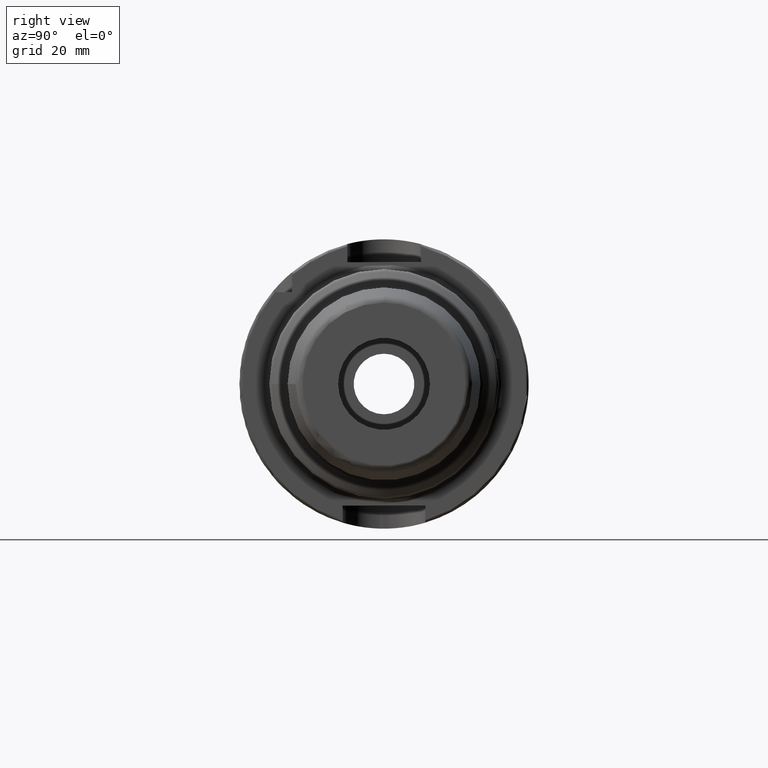
[diagram: clean part render]
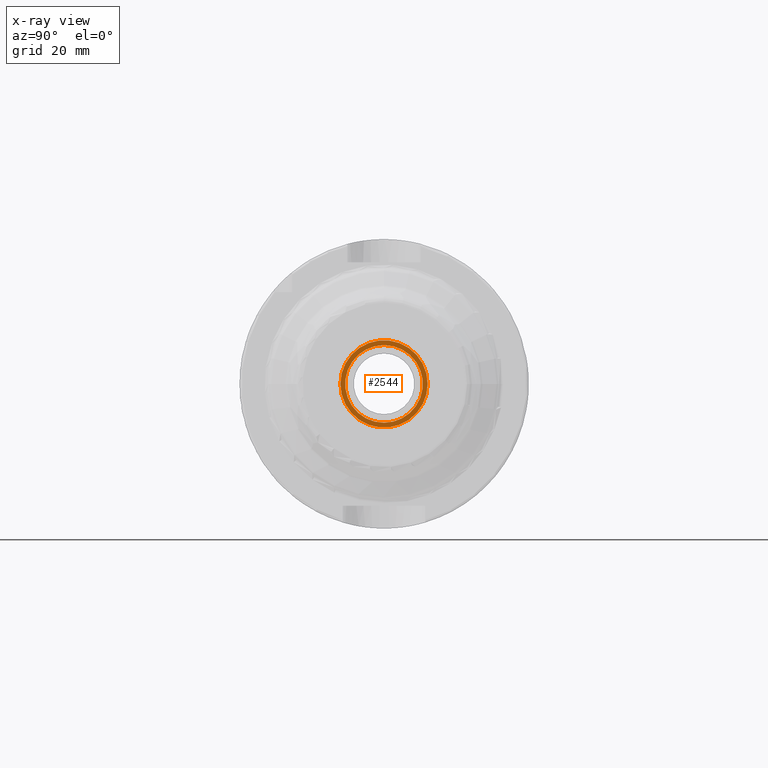
[diagram: x-ray — body ghosted, one internal face saturated and labeled with its STEP entity id]
A machine part, right view, then the same camera in x-ray: the body is ghosted and one INTERNAL B-rep face — a face not visible from any outside direction — is saturated and labeled: STEP entity #2544.
In plain terms, the highlighted planar face has unit normal (-1, 0, 0).
Its self-contained STEP definition (entity closure, byte-faithful):
#151=FACE_BOUND('',#344,.T.);
#162=PLANE('',#2710);
#207=FACE_OUTER_BOUND('',#343,.T.);
#343=EDGE_LOOP('',(#1678,#1679));
#344=EDGE_LOOP('',(#1680,#1681));
#721=CIRCLE('',#2702,8.45873400000001);
#722=CIRCLE('',#2703,8.45873400000001);
#725=CIRCLE('',#2708,9.5);
#726=CIRCLE('',#2709,9.5);
#947=VERTEX_POINT('',#3928);
#948=VERTEX_POINT('',#3930);
#951=VERTEX_POINT('',#3939);
#952=VERTEX_POINT('',#3941);
#1243=EDGE_CURVE('',#948,#947,#721,.T.);
#1244=EDGE_CURVE('',#947,#948,#722,.T.);
#1248=EDGE_CURVE('',#951,#952,#725,.T.);
#1249=EDGE_CURVE('',#952,#951,#726,.T.);
#1678=ORIENTED_EDGE('',*,*,#1249,.F.);
#1679=ORIENTED_EDGE('',*,*,#1248,.F.);
#1680=ORIENTED_EDGE('',*,*,#1243,.T.);
#1681=ORIENTED_EDGE('',*,*,#1244,.T.);
#2544=ADVANCED_FACE('',(#207,#151),#162,.F.);
#2702=AXIS2_PLACEMENT_3D('',#3931,#3080,#3081);
#2703=AXIS2_PLACEMENT_3D('',#3932,#3082,#3083);
#2708=AXIS2_PLACEMENT_3D('',#3942,#3093,#3094);
#2709=AXIS2_PLACEMENT_3D('',#3943,#3095,#3096);
#2710=AXIS2_PLACEMENT_3D('',#3944,#3097,#3098);
#3080=DIRECTION('center_axis',(-1.,0.,0.));
#3081=DIRECTION('ref_axis',(0.,0.,1.));
#3082=DIRECTION('center_axis',(-1.,0.,0.));
#3083=DIRECTION('ref_axis',(0.,0.,1.));
#3093=DIRECTION('center_axis',(-1.,0.,0.));
#3094=DIRECTION('ref_axis',(0.,0.,1.));
#3095=DIRECTION('center_axis',(-1.,0.,0.));
#3096=DIRECTION('ref_axis',(0.,0.,1.));
#3097=DIRECTION('center_axis',(-1.,0.,0.));
#3098=DIRECTION('ref_axis',(0.,0.,1.));
#3928=CARTESIAN_POINT('',(24.,-1.03589615179389E-15,-8.458734));
#3930=CARTESIAN_POINT('',(24.,0.,8.458734));
#3931=CARTESIAN_POINT('Origin',(24.,0.,0.));
#3932=CARTESIAN_POINT('Origin',(24.,0.,0.));
#3939=CARTESIAN_POINT('',(24.,-9.5,1.16341445918999E-15));
#3941=CARTESIAN_POINT('',(24.,9.5,0.));
#3942=CARTESIAN_POINT('Origin',(24.,0.,0.));
#3943=CARTESIAN_POINT('Origin',(24.,0.,0.));
#3944=CARTESIAN_POINT('Origin',(24.,7.,0.));